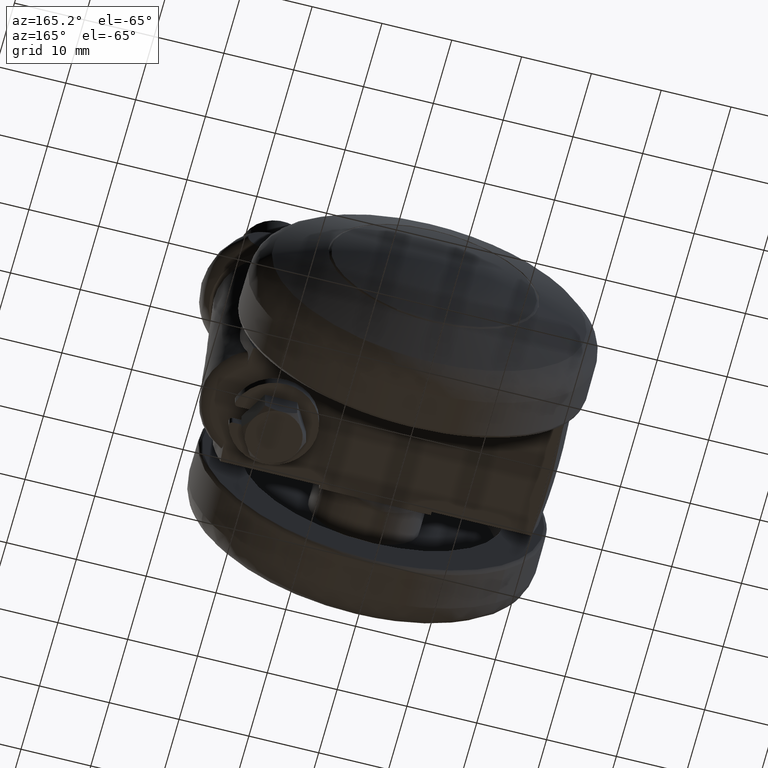
[diagram: clean part render]
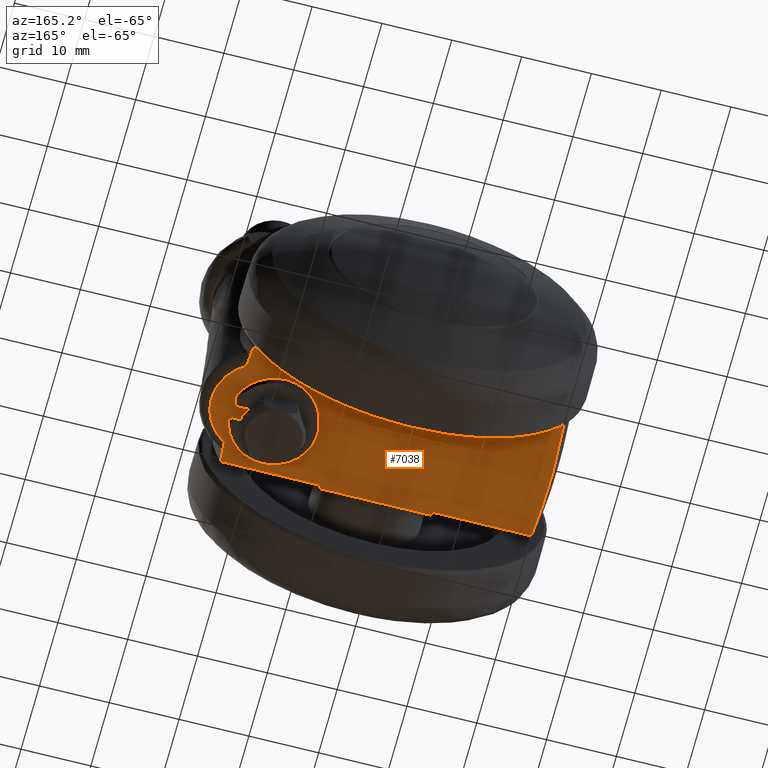
[diagram: same view with one face highlighted and labeled with its STEP entity id]
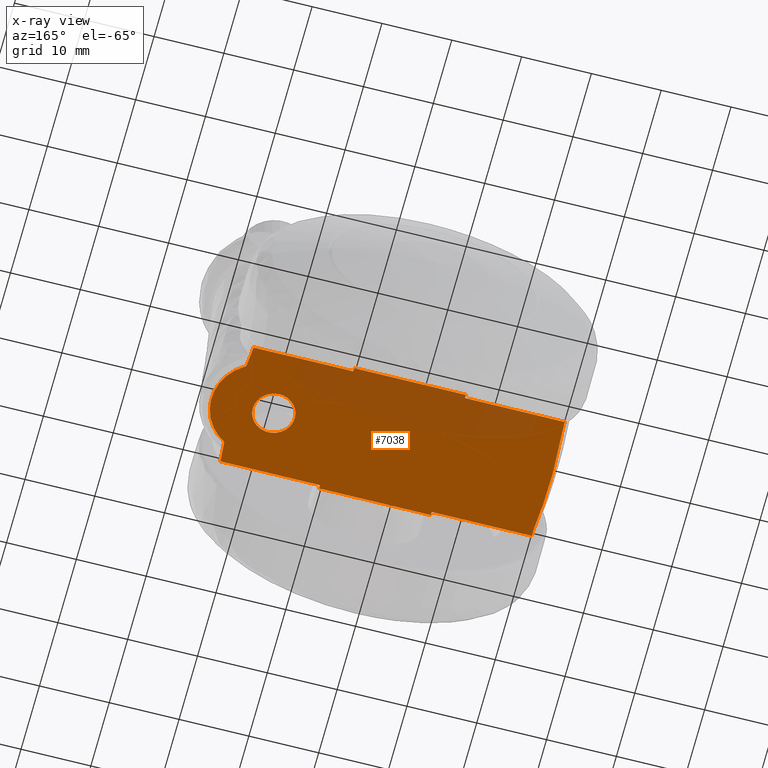
[diagram: x-ray of the same camera — body ghosted, the highlighted face saturated]
A machine part, auxiliary view. The second image highlights one B-rep face of the part: STEP entity #7038.
The next image is the same camera in x-ray: the body ghosted, the highlighted face saturated — about 22% of this face is hidden behind the body in this view.
In plain terms, the highlighted face is a freeform B-spline surface patch.
Its self-contained STEP definition (entity closure, byte-faithful):
#4496=CARTESIAN_POINT('',(16.627615993557932,-2.976798641451277,-7.499999999999999));
#4497=VERTEX_POINT('',#4496);
#4503=CARTESIAN_POINT('',(14.0,-2.755364E-015,-7.500000000000000));
#4504=VERTEX_POINT('',#4503);
#4505=CARTESIAN_POINT('',(16.627615993557928,-2.976798641451277,-7.499999999999999));
#4506=CARTESIAN_POINT('',(13.999999999999995,-2.648095800087455,-7.500000000000000));
#4507=CARTESIAN_POINT('',(14.0,-2.755364E-015,-7.500000000000000));
#4515=(BOUNDED_CURVE()B_SPLINE_CURVE(2,(#4505,#4506,#4507),.UNSPECIFIED.,.F.,.U.)B_SPLINE_CURVE_WITH_KNOTS((3,3),(0.271473928993655,0.500000000000000),.UNSPECIFIED.)CURVE()GEOMETRIC_REPRESENTATION_ITEM()RATIONAL_B_SPLINE_CURVE((0.954005430230174,0.732265053920640,1.0))REPRESENTATION_ITEM(''));
#4516=EDGE_CURVE('',#4497,#4504,#4515,.T.);
#4518=CARTESIAN_POINT('',(17.026179606785551,2.999885769189977,-7.500000000000002));
#4519=VERTEX_POINT('',#4518);
#4520=CARTESIAN_POINT('',(14.0,-2.755364E-015,-7.500000000000000));
#4521=CARTESIAN_POINT('',(13.999999999999998,2.999999999999998,-7.500000000000000));
#4522=CARTESIAN_POINT('',(17.0,2.999999999999997,-7.500000000000000));
#4523=CARTESIAN_POINT('',(17.013090052752545,2.999999999999997,-7.500000000000000));
#4524=CARTESIAN_POINT('',(17.026179606785554,2.999885769189976,-7.500000000000002));
#4532=(BOUNDED_CURVE()B_SPLINE_CURVE(2,(#4520,#4521,#4522,#4523,#4524),.UNSPECIFIED.,.F.,.U.)B_SPLINE_CURVE_WITH_KNOTS((3,2,3),(0.500000000000000,0.750000000000000,0.751539894369093),.UNSPECIFIED.)CURVE()GEOMETRIC_REPRESENTATION_ITEM()RATIONAL_B_SPLINE_CURVE((1.0,0.707106781186548,1.0,0.998195901526415,0.996414028021476))REPRESENTATION_ITEM(''));
#4533=EDGE_CURVE('',#4504,#4519,#4532,.T.);
#4613=CARTESIAN_POINT('',(20.0,-2.755364E-015,-7.500000000000000));
#4614=VERTEX_POINT('',#4613);
#4615=CARTESIAN_POINT('',(17.026179606785554,2.999885769189976,-7.500000000000002));
#4616=CARTESIAN_POINT('',(19.999999999999996,2.973933631209084,-7.500000000000000));
#4617=CARTESIAN_POINT('',(20.0,-2.755364E-015,-7.500000000000000));
#4625=(BOUNDED_CURVE()B_SPLINE_CURVE(2,(#4615,#4616,#4617),.UNSPECIFIED.,.F.,.U.)B_SPLINE_CURVE_WITH_KNOTS((3,3),(0.751539894369093,1.0),.UNSPECIFIED.)CURVE()GEOMETRIC_REPRESENTATION_ITEM()RATIONAL_B_SPLINE_CURVE((0.996414028021476,0.708910879660133,1.0))REPRESENTATION_ITEM(''));
#4626=EDGE_CURVE('',#4519,#4614,#4625,.T.);
#4628=CARTESIAN_POINT('',(20.0,-2.755364E-015,-7.500000000000000));
#4629=CARTESIAN_POINT('',(19.999999999999996,-3.000000000000003,-7.500000000000000));
#4630=CARTESIAN_POINT('',(17.0,-3.000000000000003,-7.500000000000000));
#4631=CARTESIAN_POINT('',(16.813085217194562,-3.000000000000003,-7.500000000000000));
#4632=CARTESIAN_POINT('',(16.627615993557928,-2.976798641451277,-7.499999999999999));
#4640=(BOUNDED_CURVE()B_SPLINE_CURVE(2,(#4628,#4629,#4630,#4631,#4632),.UNSPECIFIED.,.F.,.U.)B_SPLINE_CURVE_WITH_KNOTS((3,2,3),(0.0,0.250000000000000,0.271473928993655),.UNSPECIFIED.)CURVE()GEOMETRIC_REPRESENTATION_ITEM()RATIONAL_B_SPLINE_CURVE((1.0,0.707106781186548,1.0,0.974841727265907,0.954005430230174))REPRESENTATION_ITEM(''));
#4641=EDGE_CURVE('',#4614,#4497,#4640,.T.);
#5347=CARTESIAN_POINT('',(22.508473345036649,6.008970139218520,-7.500000000000000));
#5348=VERTEX_POINT('',#5347);
#6359=CARTESIAN_POINT('',(22.508473345036649,-6.008970139218490,-7.500000000000000));
#6360=VERTEX_POINT('',#6359);
#6466=CARTESIAN_POINT('',(22.508473345036649,6.008970139218517,-7.500000000000000));
#6467=CARTESIAN_POINT('',(25.923797487043977,3.971716724947550,-7.500000000000000));
#6468=CARTESIAN_POINT('',(25.923797487043981,8.572244E-016,-7.500000000000000));
#6469=CARTESIAN_POINT('',(25.923797487043977,-3.971716724947548,-7.500000000000000));
#6470=CARTESIAN_POINT('',(22.508473345036649,-6.008970139218516,-7.500000000000000));
#6478=(BOUNDED_CURVE()B_SPLINE_CURVE(2,(#6466,#6467,#6468,#6469,#6470),.UNSPECIFIED.,.F.,.U.)B_SPLINE_CURVE_WITH_KNOTS((3,2,3),(0.0,0.500000000000000,1.0),.UNSPECIFIED.)CURVE()GEOMETRIC_REPRESENTATION_ITEM()RATIONAL_B_SPLINE_CURVE((1.0,0.869752913530884,1.0,0.869752913530884,1.0))REPRESENTATION_ITEM(''));
#6479=EDGE_CURVE('',#5348,#6360,#6478,.T.);
#6574=CARTESIAN_POINT('',(8.000000000000199,-9.0,-7.500000000000000));
#6575=VERTEX_POINT('',#6574);
#6588=CARTESIAN_POINT('',(8.000000000000231,-9.499999999999890,-7.500000000000000));
#6589=VERTEX_POINT('',#6588);
#6595=CARTESIAN_POINT('',(8.000000000000199,-9.0,-7.500000000000000));
#6596=CARTESIAN_POINT('',(8.000000000000231,-9.499999999999890,-7.500000000000000));
#6597=QUASI_UNIFORM_CURVE('',1,(#6595,#6596),.UNSPECIFIED.,.F.,.U.);
#6598=EDGE_CURVE('',#6575,#6589,#6597,.T.);
#6617=CARTESIAN_POINT('',(-7.999999999999789,-9.0,-7.500000000000000));
#6618=VERTEX_POINT('',#6617);
#6624=CARTESIAN_POINT('',(-7.999999999999789,-9.499999999999890,-7.500000000000000));
#6625=VERTEX_POINT('',#6624);
#6626=CARTESIAN_POINT('',(-7.999999999999789,-9.0,-7.500000000000000));
#6627=CARTESIAN_POINT('',(-7.999999999999789,-9.499999999999890,-7.500000000000000));
#6628=QUASI_UNIFORM_CURVE('',1,(#6626,#6627),.UNSPECIFIED.,.F.,.U.);
#6629=EDGE_CURVE('',#6618,#6625,#6628,.T.);
#6667=CARTESIAN_POINT('',(-7.999999999999789,-9.499999999999890,-7.500000000000000));
#6668=CARTESIAN_POINT('',(8.000000000000231,-9.499999999999890,-7.500000000000000));
#6669=QUASI_UNIFORM_CURVE('',1,(#6667,#6668),.UNSPECIFIED.,.F.,.U.);
#6670=EDGE_CURVE('',#6625,#6589,#6669,.T.);
#6771=CARTESIAN_POINT('',(8.000000000000231,9.500000000000108,-7.500000000000000));
#6772=VERTEX_POINT('',#6771);
#6778=CARTESIAN_POINT('',(-7.999999999999789,9.500000000000108,-7.500000000000000));
#6779=VERTEX_POINT('',#6778);
#6780=CARTESIAN_POINT('',(-7.999999999999789,9.500000000000108,-7.500000000000000));
#6781=CARTESIAN_POINT('',(8.000000000000231,9.500000000000108,-7.500000000000000));
#6782=QUASI_UNIFORM_CURVE('',1,(#6780,#6781),.UNSPECIFIED.,.F.,.U.);
#6783=EDGE_CURVE('',#6779,#6772,#6782,.T.);
#6805=CARTESIAN_POINT('',(-7.999999999999789,8.999999999999901,-7.500000000000000));
#6806=VERTEX_POINT('',#6805);
#6807=CARTESIAN_POINT('',(-7.999999999999789,9.500000000000108,-7.500000000000000));
#6808=CARTESIAN_POINT('',(-7.999999999999789,8.999999999999901,-7.500000000000000));
#6809=QUASI_UNIFORM_CURVE('',1,(#6807,#6808),.UNSPECIFIED.,.F.,.U.);
#6810=EDGE_CURVE('',#6779,#6806,#6809,.T.);
#6827=CARTESIAN_POINT('',(8.000000000000231,8.999999999999901,-7.500000000000000));
#6828=VERTEX_POINT('',#6827);
#6834=CARTESIAN_POINT('',(8.000000000000231,9.500000000000108,-7.500000000000000));
#6835=CARTESIAN_POINT('',(8.000000000000231,8.999999999999901,-7.500000000000000));
#6836=QUASI_UNIFORM_CURVE('',1,(#6834,#6835),.UNSPECIFIED.,.F.,.U.);
#6837=EDGE_CURVE('',#6772,#6828,#6836,.T.);
#6869=CARTESIAN_POINT('',(22.271056962330849,-9.0,-7.500000000000000));
#6870=VERTEX_POINT('',#6869);
#6884=CARTESIAN_POINT('',(22.271056962330849,-9.0,-7.500000000000000));
#6885=CARTESIAN_POINT('',(22.365907716105198,-8.005315201643915,-7.500000000000000));
#6886=CARTESIAN_POINT('',(22.445051108199991,-7.008305928470444,-7.500000000000000));
#6887=CARTESIAN_POINT('',(22.508473345036649,-6.008970139218490,-7.500000000000000));
#6888=B_SPLINE_CURVE_WITH_KNOTS('',3,(#6884,#6885,#6886,#6887),.UNSPECIFIED.,.F.,.U.,(4,4),(0.987302015286309,1.0),.UNSPECIFIED.);
#6889=EDGE_CURVE('',#6870,#6360,#6888,.T.);
#6902=CARTESIAN_POINT('',(22.271056962330849,-9.0,-7.500000000000000));
#6903=CARTESIAN_POINT('',(8.000000000000199,-9.0,-7.500000000000000));
#6904=QUASI_UNIFORM_CURVE('',1,(#6902,#6903),.UNSPECIFIED.,.F.,.U.);
#6905=EDGE_CURVE('',#6870,#6575,#6904,.T.);
#6909=CARTESIAN_POINT('',(-22.271056962330899,-9.0,-7.500000000000000));
#6910=VERTEX_POINT('',#6909);
#6926=CARTESIAN_POINT('',(-7.999999999999789,-9.0,-7.500000000000000));
#6927=CARTESIAN_POINT('',(-22.271056962330899,-9.0,-7.500000000000000));
#6928=QUASI_UNIFORM_CURVE('',1,(#6926,#6927),.UNSPECIFIED.,.F.,.U.);
#6929=EDGE_CURVE('',#6618,#6910,#6928,.T.);
#6940=CARTESIAN_POINT('',(-22.271056962330899,9.0,-7.500000000000000));
#6941=VERTEX_POINT('',#6940);
#6942=CARTESIAN_POINT('',(-22.271056962330899,9.0,-7.500000000000000));
#6943=CARTESIAN_POINT('',(-7.999999999999789,8.999999999999901,-7.500000000000000));
#6944=QUASI_UNIFORM_CURVE('',1,(#6942,#6943),.UNSPECIFIED.,.F.,.U.);
#6945=EDGE_CURVE('',#6941,#6806,#6944,.T.);
#6963=CARTESIAN_POINT('',(22.271056962330899,9.0,-7.500000000000000));
#6964=VERTEX_POINT('',#6963);
#6978=CARTESIAN_POINT('',(8.000000000000231,8.999999999999901,-7.500000000000000));
#6979=CARTESIAN_POINT('',(22.271056962330899,9.0,-7.500000000000000));
#6980=QUASI_UNIFORM_CURVE('',1,(#6978,#6979),.UNSPECIFIED.,.F.,.U.);
#6981=EDGE_CURVE('',#6828,#6964,#6980,.T.);
#6988=CARTESIAN_POINT('',(-25.127545805967731,-10.449049963174200,-7.500000000000000));
#6989=CARTESIAN_POINT('',(28.352499684814870,-10.449049963174200,-7.500000000000000));
#6990=CARTESIAN_POINT('',(-25.127545805967731,10.449050472794140,-7.500000000000000));
#6991=CARTESIAN_POINT('',(28.352499684814870,10.449050472794140,-7.500000000000000));
#6992=B_SPLINE_SURFACE_WITH_KNOTS('',1,1,((#6988,#6990),(#6989,#6991)),.UNSPECIFIED.,.F.,.F.,.U.,(2,2),(2,2),(0.0,53.480045490782601),(0.0,20.898100435968342),.UNSPECIFIED.);
#6993=CARTESIAN_POINT('',(22.508473345036649,6.008970139218520,-7.500000000000000));
#6994=CARTESIAN_POINT('',(22.445029146177308,7.008649669417468,-7.500000000000000));
#6995=CARTESIAN_POINT('',(22.365875098585281,8.005657028487292,-7.500000000000001));
#6996=CARTESIAN_POINT('',(22.271056962330899,9.0,-7.500000000000000));
#6997=B_SPLINE_CURVE_WITH_KNOTS('',3,(#6993,#6994,#6995,#6996),.UNSPECIFIED.,.F.,.U.,(4,4),(0.0,0.012657862134114),.UNSPECIFIED.);
#6998=EDGE_CURVE('',#5348,#6964,#6997,.T.);
#6999=ORIENTED_EDGE('',*,*,#6998,.F.);
#7000=ORIENTED_EDGE('',*,*,#6479,.T.);
#7001=ORIENTED_EDGE('',*,*,#6889,.F.);
#7002=ORIENTED_EDGE('',*,*,#6905,.T.);
#7003=ORIENTED_EDGE('',*,*,#6598,.T.);
#7004=ORIENTED_EDGE('',*,*,#6670,.F.);
#7005=ORIENTED_EDGE('',*,*,#6629,.F.);
#7006=ORIENTED_EDGE('',*,*,#6929,.T.);
#7007=CARTESIAN_POINT('',(-22.271056962330899,9.0,-7.500000000000000));
#7008=CARTESIAN_POINT('',(-22.326246436391131,8.421113523567511,-7.500000000000000));
#7009=CARTESIAN_POINT('',(-22.376107840399680,7.841567522138998,-7.500000000000000));
#7010=CARTESIAN_POINT('',(-22.607889066678592,4.822462405177966,-7.500000000000000));
#7011=CARTESIAN_POINT('',(-22.701146241926342,2.371928352875127,-7.499999999999999));
#7012=CARTESIAN_POINT('',(-22.697628886571451,-1.321623607242038,-7.499999999999997));
#7013=CARTESIAN_POINT('',(-22.672520384214948,-2.555770472345564,-7.500000000000002));
#7014=CARTESIAN_POINT('',(-22.610680921234270,-4.102223723649644,-7.499999999999999));
#7015=CARTESIAN_POINT('',(-22.596786909220739,-4.411712442788734,-7.500000000000001));
#7016=CARTESIAN_POINT('',(-22.566012359647061,-5.029699530149097,-7.499999999999998));
#7017=CARTESIAN_POINT('',(-22.515351681856671,-5.955708155191383,-7.500000000000001));
#7018=CARTESIAN_POINT('',(-22.451252646681070,-6.878813337347844,-7.500000000000000));
#7019=CARTESIAN_POINT('',(-22.362715623734921,-7.996148128712547,-7.500000000000000));
#7020=CARTESIAN_POINT('',(-22.318867952421201,-8.498502214515414,-7.500000000000000));
#7021=CARTESIAN_POINT('',(-22.271056962330899,-9.0,-7.500000000000000));
#7022=B_SPLINE_CURVE_WITH_KNOTS('',3,(#7007,#7008,#7009,#7010,#7011,#7012,#7013,#7014,#7015,#7016,#7017,#7018,#7019,#7020,#7021),.UNSPECIFIED.,.F.,.U.,(4,2,2,2,2,1,2,4),(0.461315755579124,0.468749999999992,0.499999999999991,0.515624999999991,0.519531249999991,0.523437499999991,0.531249999999991,0.537651572681553),.UNSPECIFIED.);
#7023=EDGE_CURVE('',#6941,#6910,#7022,.T.);
#7024=ORIENTED_EDGE('',*,*,#7023,.F.);
#7025=ORIENTED_EDGE('',*,*,#6945,.T.);
#7026=ORIENTED_EDGE('',*,*,#6810,.F.);
#7027=ORIENTED_EDGE('',*,*,#6783,.T.);
#7028=ORIENTED_EDGE('',*,*,#6837,.T.);
#7029=ORIENTED_EDGE('',*,*,#6981,.T.);
#7030=EDGE_LOOP('',(#6999,#7000,#7001,#7002,#7003,#7004,#7005,#7006,#7024,#7025,#7026,#7027,#7028,#7029));
#7031=FACE_OUTER_BOUND('',#7030,.T.);
#7032=ORIENTED_EDGE('',*,*,#4533,.F.);
#7033=ORIENTED_EDGE('',*,*,#4516,.F.);
#7034=ORIENTED_EDGE('',*,*,#4641,.F.);
#7035=ORIENTED_EDGE('',*,*,#4626,.F.);
#7036=EDGE_LOOP('',(#7032,#7033,#7034,#7035));
#7037=FACE_BOUND('',#7036,.T.);
#7038=ADVANCED_FACE('',(#7031,#7037),#6992,.F.);